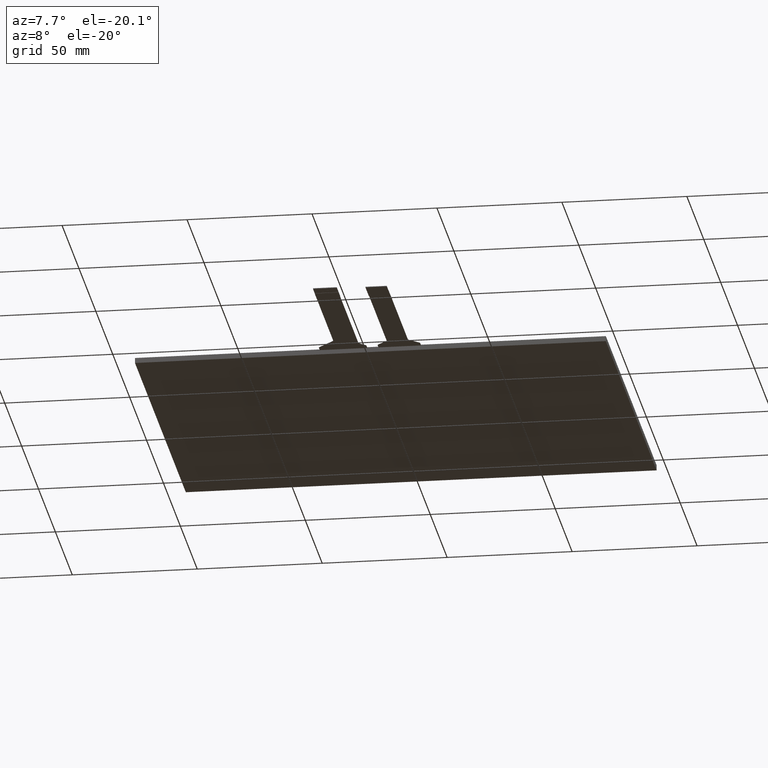
[diagram: clean part render]
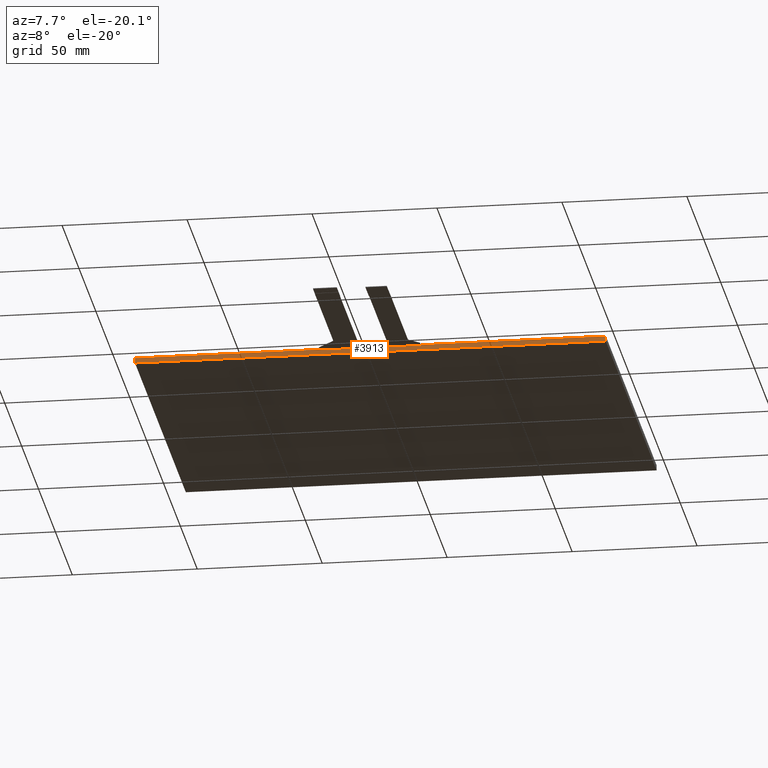
[diagram: same view with one face highlighted and labeled with its STEP entity id]
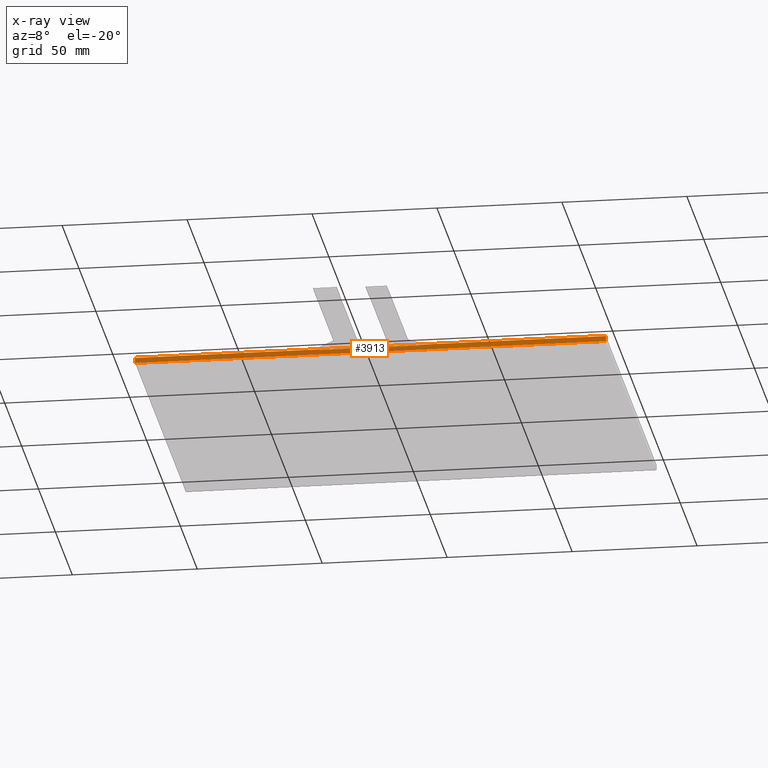
[diagram: x-ray of the same camera — body ghosted, the highlighted face saturated]
A machine part, auxiliary view. The second image highlights one B-rep face of the part: STEP entity #3913.
The next image is the same camera in x-ray: the body ghosted, the highlighted face saturated — about 0% of this face is hidden behind the body in this view.
In plain terms, the highlighted planar face has unit normal (0, -1, 0).
Its self-contained STEP definition (entity closure, byte-faithful):
#48=FACE_BOUND('',#606,.T.);
#49=FACE_BOUND('',#607,.T.);
#223=PLANE('',#4147);
#413=FACE_OUTER_BOUND('',#605,.T.);
#605=EDGE_LOOP('',(#3688,#3689,#3690,#3691));
#606=EDGE_LOOP('',(#3692,#3693,#3694,#3695));
#607=EDGE_LOOP('',(#3696,#3697,#3698,#3699));
#618=LINE('',#5130,#1146);
#648=LINE('',#5212,#1176);
#655=LINE('',#5228,#1183);
#659=LINE('',#5238,#1187);
#1096=LINE('',#6131,#1624);
#1100=LINE('',#6138,#1628);
#1101=LINE('',#6140,#1629);
#1103=LINE('',#6144,#1631);
#1130=LINE('',#6201,#1658);
#1134=LINE('',#6208,#1662);
#1135=LINE('',#6211,#1663);
#1136=LINE('',#6212,#1664);
#1146=VECTOR('',#4170,10.);
#1176=VECTOR('',#4238,10.);
#1183=VECTOR('',#4251,10.);
#1187=VECTOR('',#4261,10.);
#1624=VECTOR('',#5024,10.);
#1628=VECTOR('',#5032,10.);
#1629=VECTOR('',#5035,10.);
#1631=VECTOR('',#5041,10.);
#1658=VECTOR('',#5088,10.);
#1662=VECTOR('',#5094,10.);
#1663=VECTOR('',#5097,10.);
#1664=VECTOR('',#5098,10.);
#1698=VERTEX_POINT('',#5127);
#1699=VERTEX_POINT('',#5129);
#1731=VERTEX_POINT('',#5209);
#1732=VERTEX_POINT('',#5211);
#1738=VERTEX_POINT('',#5226);
#1741=VERTEX_POINT('',#5236);
#2034=VERTEX_POINT('',#6130);
#2035=VERTEX_POINT('',#6136);
#2054=VERTEX_POINT('',#6198);
#2055=VERTEX_POINT('',#6200);
#2057=VERTEX_POINT('',#6206);
#2058=VERTEX_POINT('',#6210);
#2068=EDGE_CURVE('',#1699,#1698,#618,.T.);
#2108=EDGE_CURVE('',#1732,#1731,#648,.T.);
#2117=EDGE_CURVE('',#1731,#1738,#655,.T.);
#2122=EDGE_CURVE('',#1738,#1741,#659,.T.);
#2568=EDGE_CURVE('',#2034,#1699,#1096,.T.);
#2572=EDGE_CURVE('',#1698,#2035,#1100,.T.);
#2573=EDGE_CURVE('',#2035,#2034,#1101,.T.);
#2575=EDGE_CURVE('',#1741,#1732,#1103,.T.);
#2602=EDGE_CURVE('',#2054,#2055,#1130,.T.);
#2606=EDGE_CURVE('',#2054,#2057,#1134,.T.);
#2607=EDGE_CURVE('',#2058,#2057,#1135,.T.);
#2608=EDGE_CURVE('',#2055,#2058,#1136,.T.);
#3688=ORIENTED_EDGE('',*,*,#2602,.F.);
#3689=ORIENTED_EDGE('',*,*,#2606,.T.);
#3690=ORIENTED_EDGE('',*,*,#2607,.F.);
#3691=ORIENTED_EDGE('',*,*,#2608,.F.);
#3692=ORIENTED_EDGE('',*,*,#2572,.T.);
#3693=ORIENTED_EDGE('',*,*,#2573,.T.);
#3694=ORIENTED_EDGE('',*,*,#2568,.T.);
#3695=ORIENTED_EDGE('',*,*,#2068,.T.);
#3696=ORIENTED_EDGE('',*,*,#2108,.T.);
#3697=ORIENTED_EDGE('',*,*,#2117,.T.);
#3698=ORIENTED_EDGE('',*,*,#2122,.T.);
#3699=ORIENTED_EDGE('',*,*,#2575,.T.);
#3913=ADVANCED_FACE('',(#413,#48,#49),#223,.T.);
#4147=AXIS2_PLACEMENT_3D('',#6209,#5095,#5096);
#4170=DIRECTION('',(1.,1.41429684665625E-16,0.));
#4238=DIRECTION('',(0.,0.,-1.));
#4251=DIRECTION('',(-1.,-1.41429684665625E-16,0.));
#4261=DIRECTION('',(0.,0.,1.));
#5024=DIRECTION('',(0.,0.,1.));
#5032=DIRECTION('',(0.,0.,-1.));
#5035=DIRECTION('',(-1.,-1.41429684665625E-16,0.));
#5041=DIRECTION('',(1.,1.41429684665625E-16,0.));
#5088=DIRECTION('',(1.,1.41429684665625E-16,0.));
#5094=DIRECTION('',(0.,0.,-1.));
#5095=DIRECTION('center_axis',(1.41429684665625E-16,-1.,0.));
#5096=DIRECTION('ref_axis',(-1.,-1.41429684665625E-16,0.));
#5097=DIRECTION('',(-1.,-1.41429684665625E-16,0.));
#5098=DIRECTION('',(0.,0.,-1.));
#5127=CARTESIAN_POINT('',(20.25,-77.1,-0.2));
#5129=CARTESIAN_POINT('',(3.25000000000001,-77.1,-0.2));
#5130=CARTESIAN_POINT('',(52.975,-77.1,-0.2));
#5209=CARTESIAN_POINT('',(-1.25000000000003,-77.1,-0.3));
#5211=CARTESIAN_POINT('',(-1.25000000000003,-77.1,-0.2));
#5212=CARTESIAN_POINT('',(-1.25000000000004,-77.1,-0.1));
#5226=CARTESIAN_POINT('',(-20.25,-77.1,-0.3));
#5228=CARTESIAN_POINT('',(41.725,-77.1,-0.3));
#5236=CARTESIAN_POINT('',(-20.25,-77.1,-0.2));
#5238=CARTESIAN_POINT('',(-20.25,-77.1,-0.1));
#6130=CARTESIAN_POINT('',(3.25000000000001,-77.1,-0.3));
#6131=CARTESIAN_POINT('',(3.25000000000001,-77.1,-0.1));
#6136=CARTESIAN_POINT('',(20.25,-77.1,-0.3));
#6138=CARTESIAN_POINT('',(20.25,-77.1,-0.1));
#6140=CARTESIAN_POINT('',(52.975,-77.1,-0.3));
#6144=CARTESIAN_POINT('',(41.725,-77.1,-0.2));
#6198=CARTESIAN_POINT('',(-94.2,-77.1,0.));
#6200=CARTESIAN_POINT('',(94.2,-77.1,0.));
#6201=CARTESIAN_POINT('',(-94.2,-77.1,0.));
#6206=CARTESIAN_POINT('',(-94.2,-77.1,-2.1));
#6208=CARTESIAN_POINT('',(-94.2,-77.1,0.));
#6209=CARTESIAN_POINT('Origin',(94.2,-77.1,0.));
#6210=CARTESIAN_POINT('',(94.2,-77.1,-2.1));
#6211=CARTESIAN_POINT('',(-94.2,-77.1,-2.1));
#6212=CARTESIAN_POINT('',(94.2,-77.1,0.));